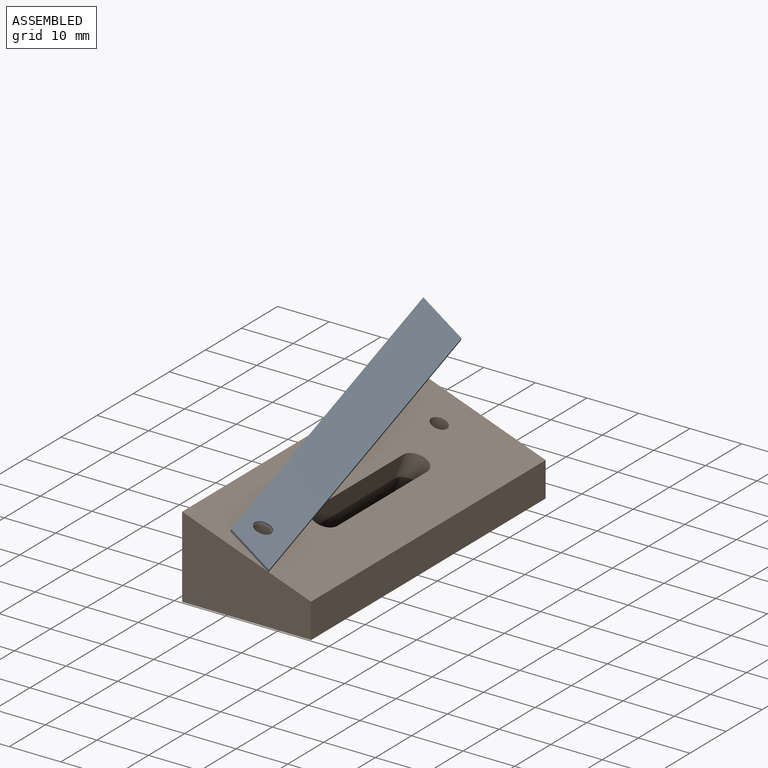
[diagram: assembled view]
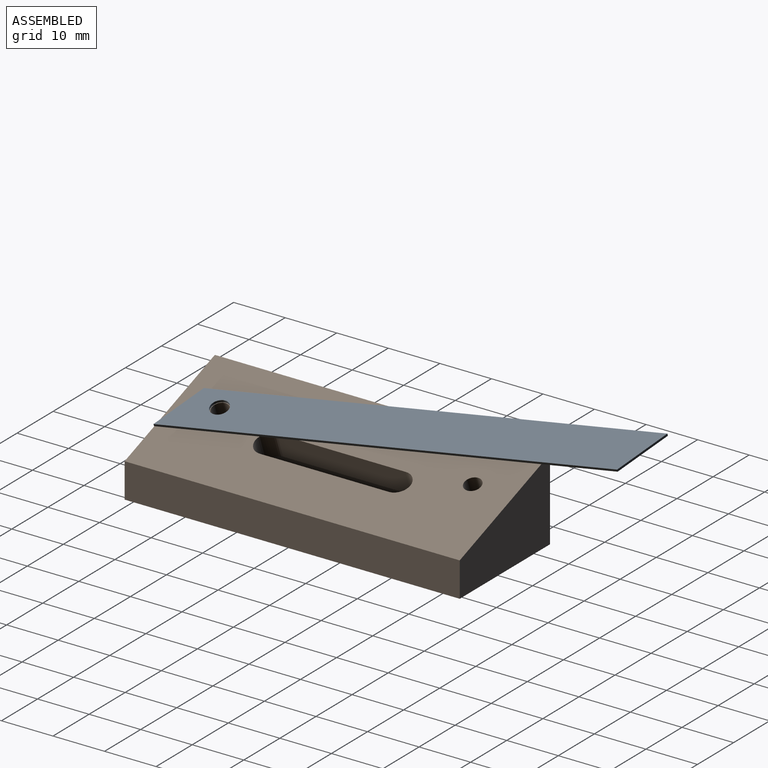
[diagram: assembled view, second angle]
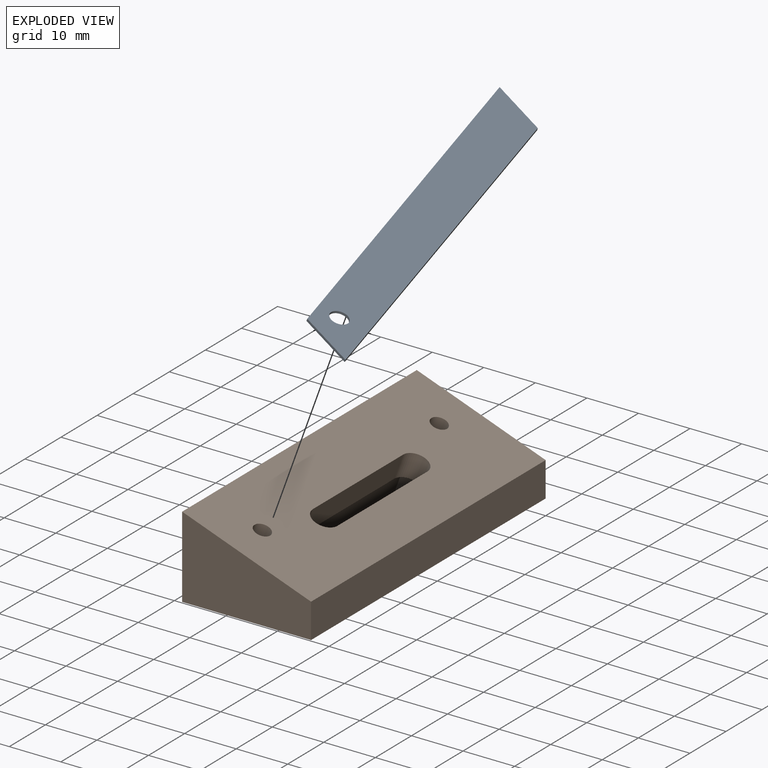
[diagram: exploded view]
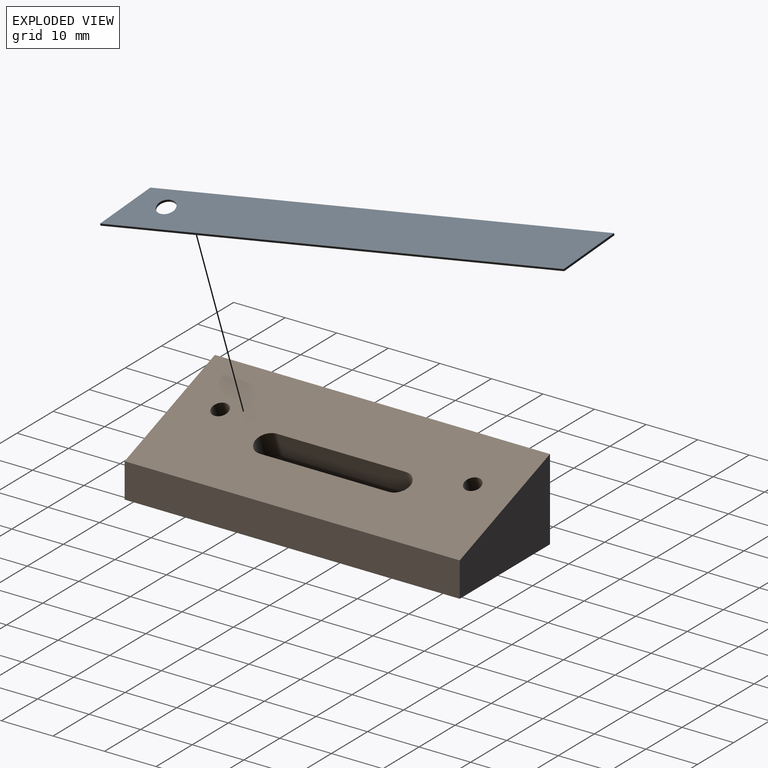
[diagram: exploded view, second angle]
ASSEMBLY  parts=2 mates=2
PART A: 7 faces, bbox 9.2x85.3x0.5 mm
  f0: plane 9.2x5.31mm, normal (-0.5,-0.87,0), area 4.8mm2, adj f1,f3,f5,f6
  f1: plane 80x0.45mm, normal (1,0,0), area 36mm2, adj f0,f2,f5,f6
  f2: plane 9.2x5.31mm, normal (0.5,0.87,0), area 4.8mm2, adj f1,f3,f5,f6
  f3: plane 80x0.45mm, normal (-1,0,0), area 36mm2, adj f0,f2,f5,f6
  f4: cylinder r=1.7mm len=3.4mm, axis (0,0,-1), area 4.8mm2, adj f5,f6
  f5: plane 85.31x9.2mm, normal (0,0,1), area 726.9mm2, adj f0,f1,f2,f3,f4
  f6: plane 85.31x9.2mm, normal (0,0,-1), area 726.9mm2, adj f0,f1,f2,f3,f4
PART B: 31 faces, bbox 25x65x15.8 mm
  f0: plane 65x25mm, normal (0,0,-1), area 1260.7mm2, adj f2,f3,f4,f5,f13,f14,f15,f16
  f1: plane 65x25mm, normal (0.34,0,0.94), area 1568.6mm2, adj f2,f3,f4,f5,f6,f7,f8,f9
  f2: plane 65x15.82mm, normal (-1,0,0), area 1028.5mm2, adj f0,f1,f4,f5
  f3: plane 65x6.72mm, normal (1,0,0), area 437.1mm2, adj f0,f1,f4,f5
  f4: plane 25x15.82mm, normal (0,-1,0), area 281.8mm2, adj f0,f1,f2,f3
  f5: plane 25x15.82mm, normal (0,1,0), area 281.8mm2, adj f0,f1,f2,f3
  f6: cylinder r=2.5mm len=6.41mm, axis (0.34,0,0.94), area 39.3mm2, adj f1,f7,f9,f26
  f7: plane 25x4.7mm, normal (-0.94,0,0.34), area 125mm2, adj f1,f6,f8,f26
  f8: cylinder r=2.5mm len=6.41mm, axis (0.34,0,0.94), area 39.3mm2, adj f1,f7,f9,f26
  f9: plane 25x4.7mm, normal (0.94,0,-0.34), area 125mm2, adj f1,f6,f8,f26
  f10: cylinder r=1.6mm len=8.61mm, axis (0.34,0,0.94), area 80.4mm2, adj f1,f19
  f11: cylinder r=1.6mm len=8.61mm, axis (0.34,0,0.94), area 80.4mm2, adj f1,f12
  f12: plane 6.93x5.64mm, normal (-0.34,0,-0.94), area 23.1mm2, adj f11,f13,f14,f15,f16,f17,f18
  f13: plane 3.65x3.46mm, normal (-0.94,0,0.34), area 13.5mm2, adj f0,f12,f14,f18
  f14: plane 4.68x4.52mm, normal (-0.47,-0.87,0.17), area 15.4mm2, adj f0,f12,f13,f15
  f15: plane 5.71x4.9mm, normal (0.47,-0.87,-0.17), area 19.1mm2, adj f0,f12,f14,f16
  f16: plane 5.71x3.46mm, normal (0.94,0,-0.34), area 21mm2, adj f0,f12,f15,f17
  f17: plane 5.71x4.9mm, normal (0.47,0.87,-0.17), area 19.1mm2, adj f0,f12,f16,f18
  f18: plane 4.68x4.52mm, normal (-0.47,0.87,0.17), area 15.4mm2, adj f0,f12,f13,f17
  f19: plane 6.93x5.64mm, normal (-0.34,0,-0.94), area 23.1mm2, adj f10,f20,f21,f22,f23,f24,f25
  f20: plane 4.68x4.52mm, normal (-0.47,0.87,0.17), area 15.4mm2, adj f0,f19,f21,f25
  f21: plane 3.65x3.46mm, normal (-0.94,0,0.34), area 13.5mm2, adj f0,f19,f20,f22
  f22: plane 4.68x4.52mm, normal (-0.47,-0.87,0.17), area 15.4mm2, adj f0,f19,f21,f23
  f23: plane 5.71x4.9mm, normal (0.47,-0.87,-0.17), area 19.1mm2, adj f0,f19,f22,f24
  f24: plane 5.71x3.46mm, normal (0.94,0,-0.34), area 21mm2, adj f0,f19,f23,f25
  f25: plane 5.71x4.9mm, normal (0.47,0.87,-0.17), area 19.1mm2, adj f0,f19,f20,f24
  f26: plane 35x7.52mm, normal (-0.34,0,-0.94), area 135.4mm2, adj f6,f7,f8,f9,f27,f28,f29,f30
  f27: plane 10.25x7.5mm, normal (0,1,0), area 52.2mm2, adj f0,f26,f28,f30
  f28: plane 35x4.76mm, normal (-0.94,0,0.34), area 177.4mm2, adj f0,f26,f27,f29
  f29: plane 10.25x7.5mm, normal (0,-1,0), area 52.2mm2, adj f0,f26,f28,f30
  f30: plane 35x7.5mm, normal (0.94,0,-0.34), area 279.3mm2, adj f0,f26,f27,f29
PLACE A rot(axis=(0.1,0.83,0.55),23.9deg) t=(-28.69,-58.55,-8.36)mm
PLACE B t=(-20.53,6.51,-8.29)mm fixed
MATE cylindrical A.f4 <-> B.f11  axis (-0.34,0,-0.94) through (-35.57,-50.49,-6.09)mm
MATE planar A.f6 <-> B.f1  axis (-0.34,0,-0.94) through (-42.24,-17.67,-3.67)mm
